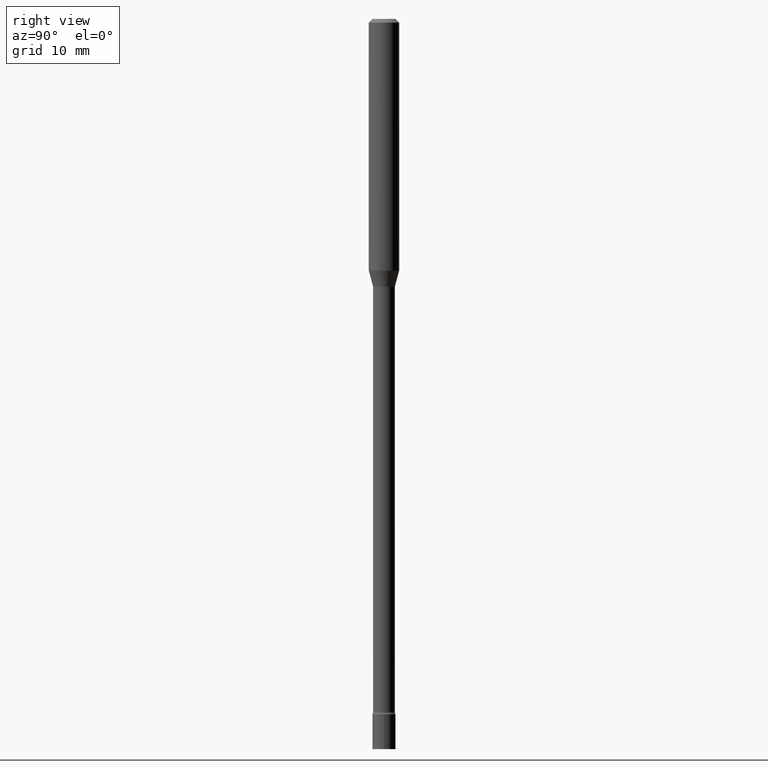
[diagram: clean part render]
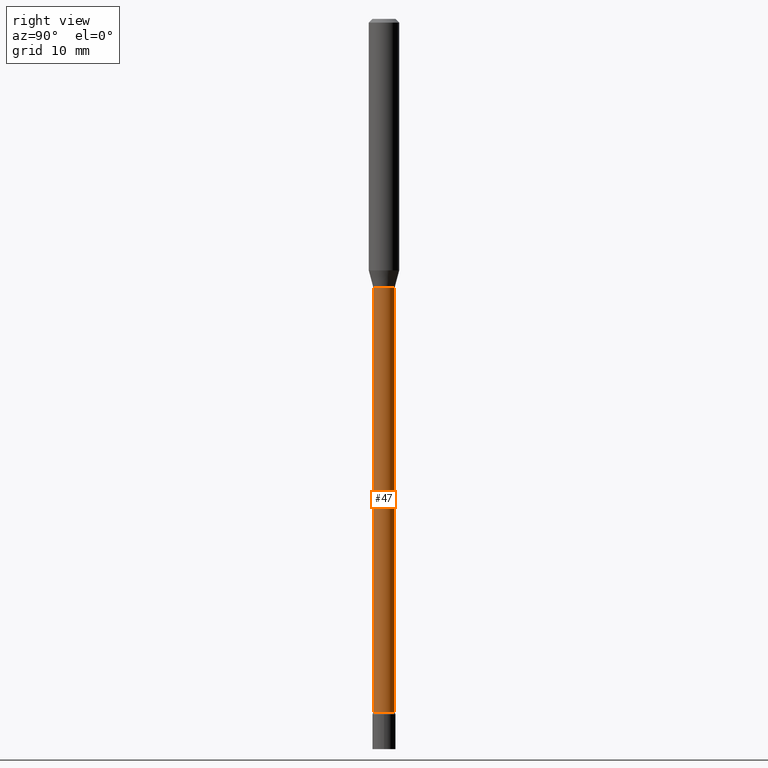
[diagram: same view with one face highlighted and labeled with its STEP entity id]
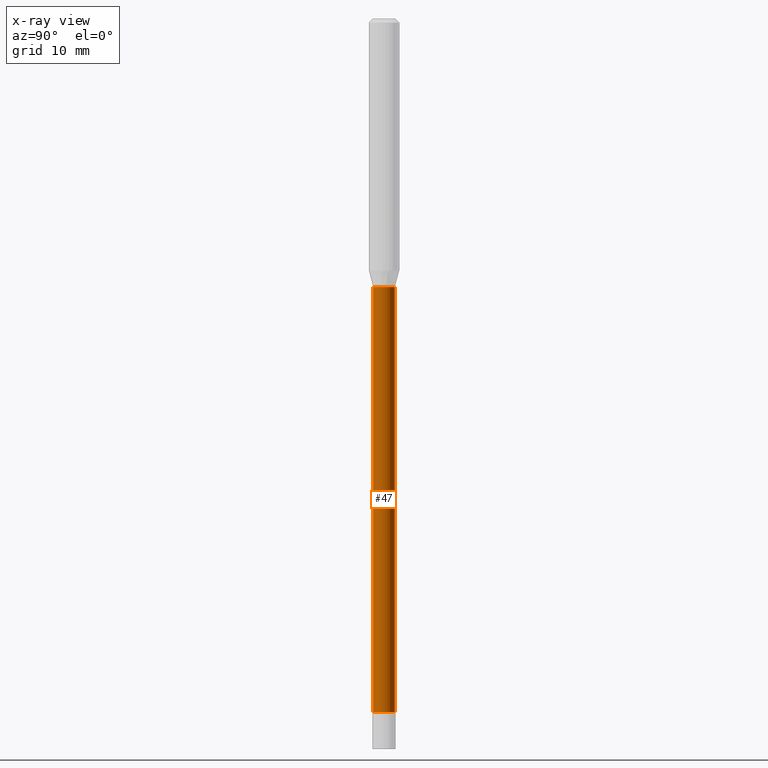
[diagram: x-ray of the same camera — body ghosted, the highlighted face saturated]
A machine part, right view. The second image highlights one B-rep face of the part: STEP entity #47.
The next image is the same camera in x-ray: the body ghosted, the highlighted face saturated — about 0% of this face is hidden behind the body in this view.
In plain terms, the highlighted cylindrical surface (edge-blend (fillet) strip) has radius 1.1341 mm, axis along (-0, 0, 1).
Its self-contained STEP definition (entity closure, byte-faithful):
#9 = DIRECTION ( 'NONE',  ( -2.445476016362466426E-29, 3.491471013458831369E-15, 1.000000000000000000 ) ) ;
#12 = AXIS2_PLACEMENT_3D ( 'NONE', #165, #209, #74 ) ;
#28 = VERTEX_POINT ( 'NONE', #77 ) ;
#30 = DIRECTION ( 'NONE',  ( -2.445476016362466426E-29, 3.491471013458831369E-15, 1.000000000000000000 ) ) ;
#32 = DIRECTION ( 'NONE',  ( -2.445476016362466426E-29, 3.491471013458831369E-15, 1.000000000000000000 ) ) ;
#40 = DIRECTION ( 'NONE',  ( -6.982962677686265922E-15, -1.000000000000000000, 3.491471013458830975E-15 ) ) ;
#44 = CYLINDRICAL_SURFACE ( 'NONE', #100, 0.04465000000000011321 ) ;
#47 = ADVANCED_FACE ( 'NONE', ( #363 ), #44, .T. ) ;
#52 = LINE ( 'NONE', #331, #136 ) ;
#53 = VERTEX_POINT ( 'NONE', #205 ) ;
#74 = DIRECTION ( 'NONE',  ( -6.982962677686265922E-15, -1.000000000000000000, 0.000000000000000000 ) ) ;
#77 = CARTESIAN_POINT ( 'NONE',  ( -3.117892835586237394E-16, -0.04465000000001016767, -2.848203551853162985 ) ) ;
#93 = ORIENTED_EDGE ( 'NONE', *, *, #499, .F. ) ;
#100 = AXIS2_PLACEMENT_3D ( 'NONE', #395, #30, #40 ) ;
#125 = VERTEX_POINT ( 'NONE', #265 ) ;
#133 = DIRECTION ( 'NONE',  ( -2.445476016362466426E-29, 3.491471013458831369E-15, 1.000000000000000000 ) ) ;
#136 = VECTOR ( 'NONE', #9, 39.37007874015748143 ) ;
#152 = AXIS2_PLACEMENT_3D ( 'NONE', #376, #133, #175 ) ;
#155 = VECTOR ( 'NONE', #32, 39.37007874015748143 ) ;
#165 = CARTESIAN_POINT ( 'NONE',  ( 6.965213475775300482E-29, -9.944420141725807524E-15, -2.848203551853162985 ) ) ;
#167 = ORIENTED_EDGE ( 'NONE', *, *, #222, .T. ) ;
#175 = DIRECTION ( 'NONE',  ( -6.982962677686265922E-15, -1.000000000000000000, 3.059180284058524971E-15 ) ) ;
#195 = VERTEX_POINT ( 'NONE', #271 ) ;
#205 = CARTESIAN_POINT ( 'NONE',  ( 3.273825655015366502E-16, 0.04464999999999028080, -2.848203551853162985 ) ) ;
#206 = LINE ( 'NONE', #320, #155 ) ;
#209 = DIRECTION ( 'NONE',  ( -2.445476016362466426E-29, 3.491471013458831369E-15, 1.000000000000000000 ) ) ;
#222 = EDGE_CURVE ( 'NONE', #28, #53, #254, .T. ) ;
#223 = EDGE_CURVE ( 'NONE', #28, #195, #206, .T. ) ;
#254 = CIRCLE ( 'NONE', #12, 0.04465000000000022423 ) ;
#265 = CARTESIAN_POINT ( 'NONE',  ( 3.172573315169550558E-16, 0.04464999999999615804, -1.101974787463811278 ) ) ;
#271 = CARTESIAN_POINT ( 'NONE',  ( -3.117892835586649081E-16, -0.04465000000000386021, -1.101974787463811056 ) ) ;
#303 = EDGE_LOOP ( 'NONE', ( #167, #452, #93, #481 ) ) ;
#320 = CARTESIAN_POINT ( 'NONE',  ( -3.117892835586925675E-16, -0.04465000000000011321, 1.558941807509371979E-16 ) ) ;
#331 = CARTESIAN_POINT ( 'NONE',  ( 3.172573315168854881E-16, 0.04465000000000011321, -1.558941807509371979E-16 ) ) ;
#341 = CIRCLE ( 'NONE', #152, 0.04465000000000000913 ) ;
#363 = FACE_OUTER_BOUND ( 'NONE', #303, .T. ) ;
#376 = CARTESIAN_POINT ( 'NONE',  ( 2.694852913378876886E-29, -3.847513027992353259E-15, -1.101974787463811278 ) ) ;
#379 = EDGE_CURVE ( 'NONE', #53, #125, #52, .T. ) ;
#395 = CARTESIAN_POINT ( 'NONE',  ( 0.000000000000000000, 0.000000000000000000, 0.000000000000000000 ) ) ;
#452 = ORIENTED_EDGE ( 'NONE', *, *, #379, .T. ) ;
#481 = ORIENTED_EDGE ( 'NONE', *, *, #223, .F. ) ;
#499 = EDGE_CURVE ( 'NONE', #195, #125, #341, .T. ) ;